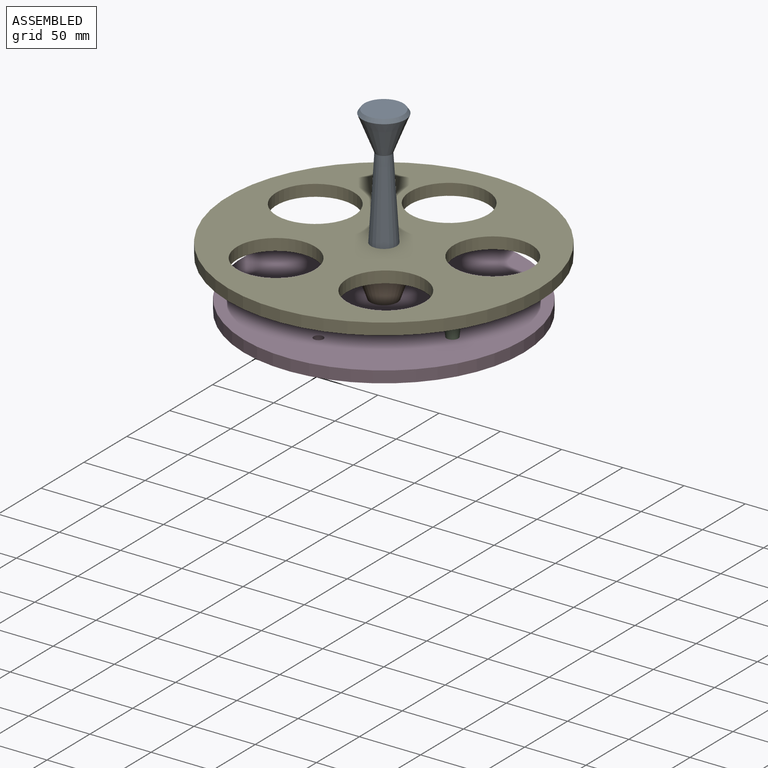
[diagram: assembled view]
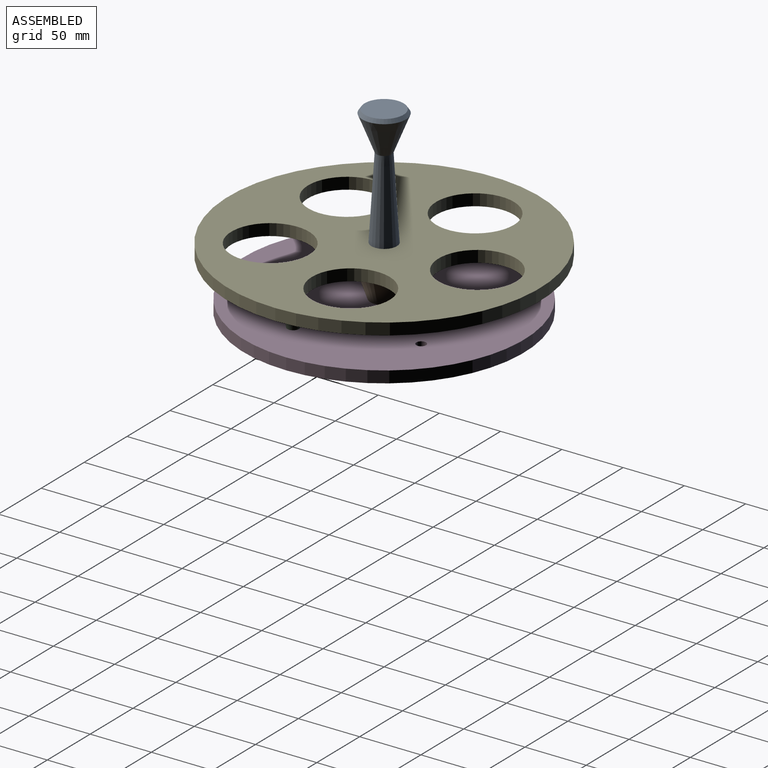
[diagram: assembled view, second angle]
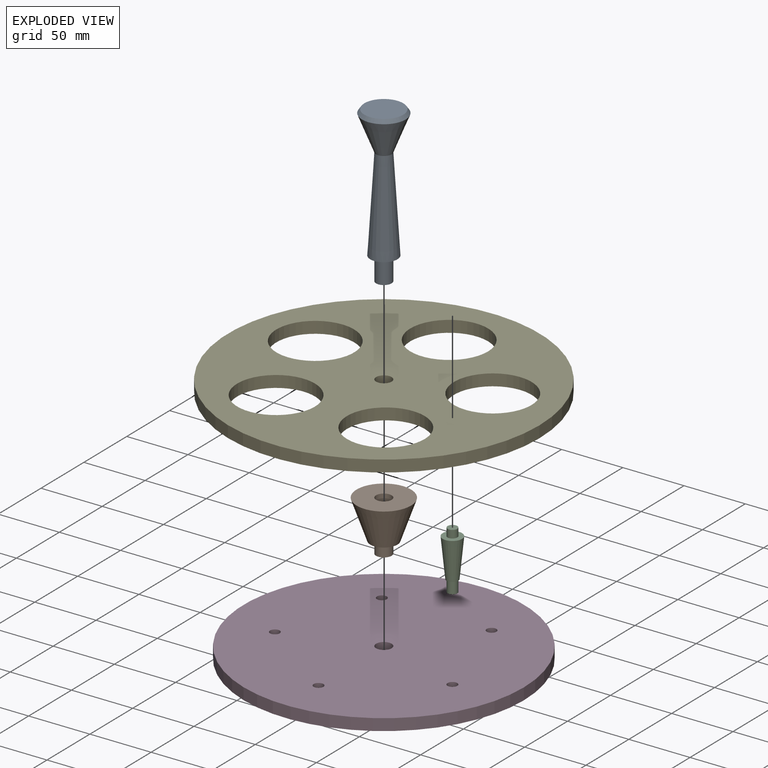
[diagram: exploded view]
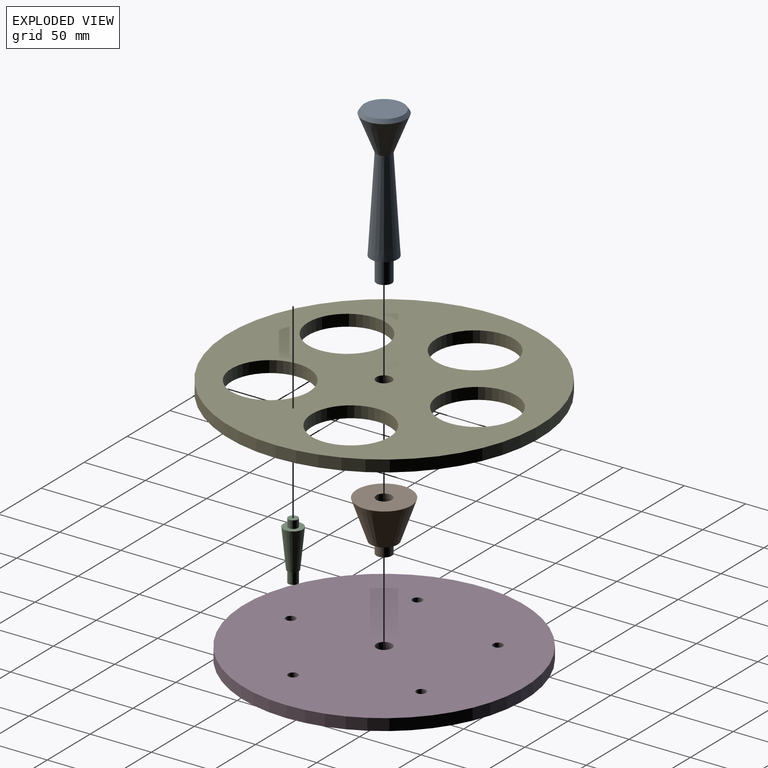
[diagram: exploded view, second angle]
ASSEMBLY  parts=5 mates=4
PART A: 7 faces, bbox 35.7x35.7x127 mm
  f0: cylinder r=6.35mm len=19.05mm, axis (0,0,1), area 760.1mm2, adj f1,f5
  f1: plane 12.7x12.7mm, normal (0,0,-1), area 126.7mm2, adj f0
  f2: plane 31.75x31.75mm, normal (0,0,1), area 791.7mm2, adj f6
  f3: cone r=19.05mm half-angle=21.8deg, axis (0,0,1), area 2360.4mm2, adj f4,f6
  f4: cone r=6.35mm half-angle=3.6deg, axis (0,0,-1), area 4188.5mm2, adj f3,f5
  f5: plane 22.23x22.23mm, normal (0,0,-1), area 261.3mm2, adj f0,f4
  f6: cone r=15.88mm half-angle=34.1deg, axis (0,0,-1), area 377.4mm2, adj f2,f3
PART B: 7 faces, bbox 44.5x44.5x41.3 mm
  f0: plane 12.7x12.7mm, normal (0,0,-1), area 126.7mm2, adj f6
  f1: plane 12.7x12.7mm, normal (0,0,1), area 126.7mm2, adj f2
  f2: cylinder r=6.35mm len=19.05mm, axis (0,0,1), area 760.1mm2, adj f1,f3
  f3: plane 44.45x44.45mm, normal (0,0,1), area 1425.1mm2, adj f2,f4
  f4: cone r=11.11mm half-angle=19.3deg, axis (0,0,1), area 3523.1mm2, adj f3,f5
  f5: plane 22.23x22.23mm, normal (0,0,-1), area 261.3mm2, adj f4,f6
  f6: cylinder r=6.35mm len=12.7mm, axis (0,0,1), area 380mm2, adj f0,f5
PART C: 7 faces, bbox 15.9x15.9x47.6 mm
  f0: plane 7.94x7.94mm, normal (0,0,-1), area 49.5mm2, adj f1
  f1: cylinder r=3.97mm len=9.53mm, axis (0,0,1), area 237.5mm2, adj f0,f2
  f2: plane 9.53x9.53mm, normal (0,0,-1), area 21.8mm2, adj f1,f3
  f3: cone r=7.94mm half-angle=5.7deg, axis (0,0,1), area 1273.1mm2, adj f2,f4
  f4: plane 15.88x15.88mm, normal (0,0,1), area 148.4mm2, adj f3,f5
  f5: cylinder r=3.97mm len=7.94mm, axis (0,0,1), area 158.3mm2, adj f4,f6
  f6: plane 7.94x7.94mm, normal (0,0,1), area 49.5mm2, adj f5
PART D: 9 faces, bbox 228.6x228.6x9.5 mm
  f0: cylinder r=3.97mm len=9.53mm, axis (0,0,-1), area 237.5mm2, adj f6,f7
  f1: cylinder r=3.97mm len=9.53mm, axis (0,0,-1), area 237.5mm2, adj f6,f7
  f2: cylinder r=3.97mm len=9.53mm, axis (0,0,-1), area 237.5mm2, adj f6,f7
  f3: cylinder r=3.97mm len=9.53mm, axis (0,0,-1), area 237.5mm2, adj f6,f7
  f4: cylinder r=3.97mm len=9.53mm, axis (0,0,-1), area 237.5mm2, adj f6,f7
  f5: cylinder r=114.3mm len=228.6mm, axis (0,0,-1), area 6840.6mm2, adj f6,f7
  f6: plane 228.6x228.6mm, normal (0,0,1), area 40669.2mm2, adj f0,f1,f2,f3,f4,f5,f8
  f7: plane 228.6x228.6mm, normal (0,0,-1), area 40669.2mm2, adj f0,f1,f2,f3,f4,f5,f8
  f8: cylinder r=6.35mm len=12.7mm, axis (0,0,1), area 380mm2, adj f6,f7
PART E: 19 faces, bbox 254x254x9.5 mm
  f0: plane 7.94x7.94mm, normal (0,0,-1), area 49.5mm2, adj f1
  f1: cylinder r=3.97mm len=7.94mm, axis (0,0,1), area 158.3mm2, adj f0,f15
  f2: plane 7.94x7.94mm, normal (0,0,-1), area 49.5mm2, adj f3
  f3: cylinder r=3.97mm len=7.94mm, axis (0,0,1), area 158.3mm2, adj f2,f15
  f4: plane 7.94x7.94mm, normal (0,0,-1), area 49.5mm2, adj f5
  f5: cylinder r=3.97mm len=7.94mm, axis (0,0,1), area 158.3mm2, adj f4,f15
  f6: plane 7.94x7.94mm, normal (0,0,-1), area 49.5mm2, adj f7
  f7: cylinder r=3.97mm len=7.94mm, axis (0,0,1), area 158.3mm2, adj f6,f15
  f8: cylinder r=31.75mm len=63.5mm, axis (0,0,-1), area 1900.2mm2, adj f14,f15
  f9: cylinder r=31.75mm len=63.5mm, axis (0,0,-1), area 1900.2mm2, adj f14,f15
  f10: cylinder r=31.75mm len=63.5mm, axis (0,0,-1), area 1900.2mm2, adj f14,f15
  f11: cylinder r=31.75mm len=63.5mm, axis (0,0,-1), area 1900.2mm2, adj f14,f15
  f12: cylinder r=127mm len=254mm, axis (0,0,-1), area 7600.6mm2, adj f14,f15
  f13: cylinder r=6.35mm len=12.7mm, axis (0,0,-1), area 380mm2, adj f14,f15
  f14: plane 254x254mm, normal (0,0,1), area 34709.5mm2, adj f8,f9,f10,f11,f12,f13,f16
  f15: plane 254x254mm, normal (0,0,-1), area 34462mm2, adj f1,f3,f5,f7,f8,f9,f10,f11
  f16: cylinder r=31.75mm len=63.5mm, axis (0,0,-1), area 1900.2mm2, adj f14,f15
  f17: cylinder r=3.97mm len=7.94mm, axis (0,0,1), area 158.3mm2, adj f15,f18
  f18: plane 7.94x7.94mm, normal (0,0,-1), area 49.5mm2, adj f17
PLACE A t=(0,0,-9.53)mm
PLACE B at identity
PLACE C t=(72.47,52.65,0)mm
PLACE D at identity fixed
PLACE E at identity
MATE fastened A.f0 <-> B.f2  axis (0,0,1) through (0,0,41.27)mm
MATE fastened B.f2 <-> D.f5  axis (0,0,-1) through (0,0,0)mm
MATE fastened A.f0 <-> E.f13  axis (0,0,-1) through (0,0,41.27)mm
MATE fastened C.f1 <-> D.f1  axis (0,0,-1) through (72.47,-23.55,0)mm
